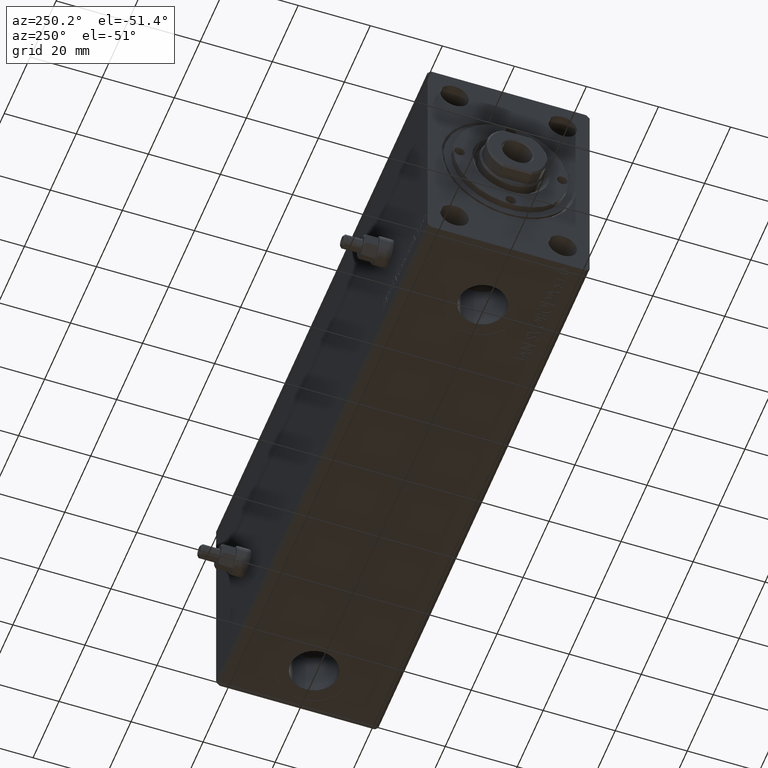
[diagram: clean part render]
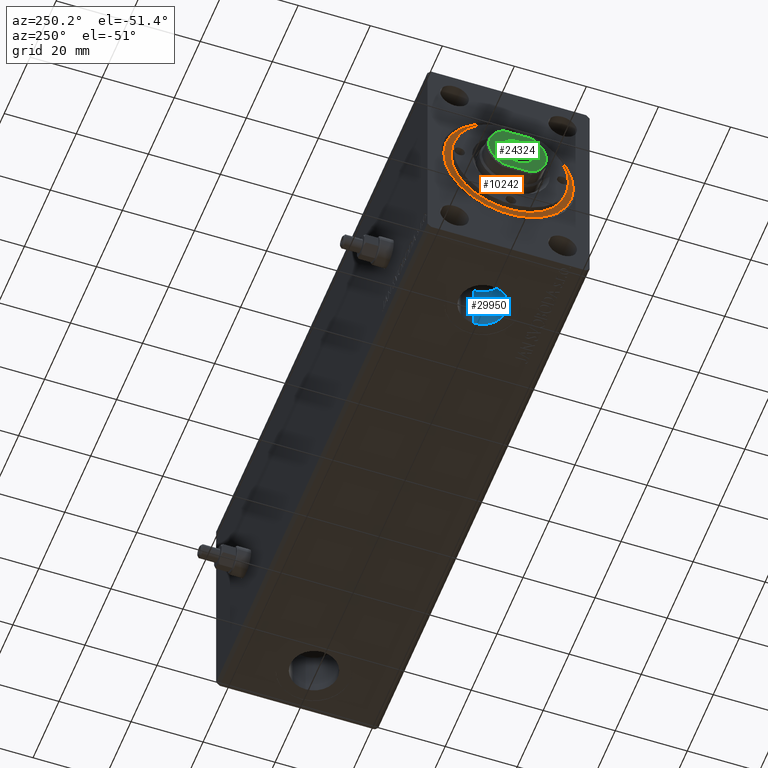
[diagram: same view with three faces highlighted in distinct colors, each labeled with its STEP entity id]
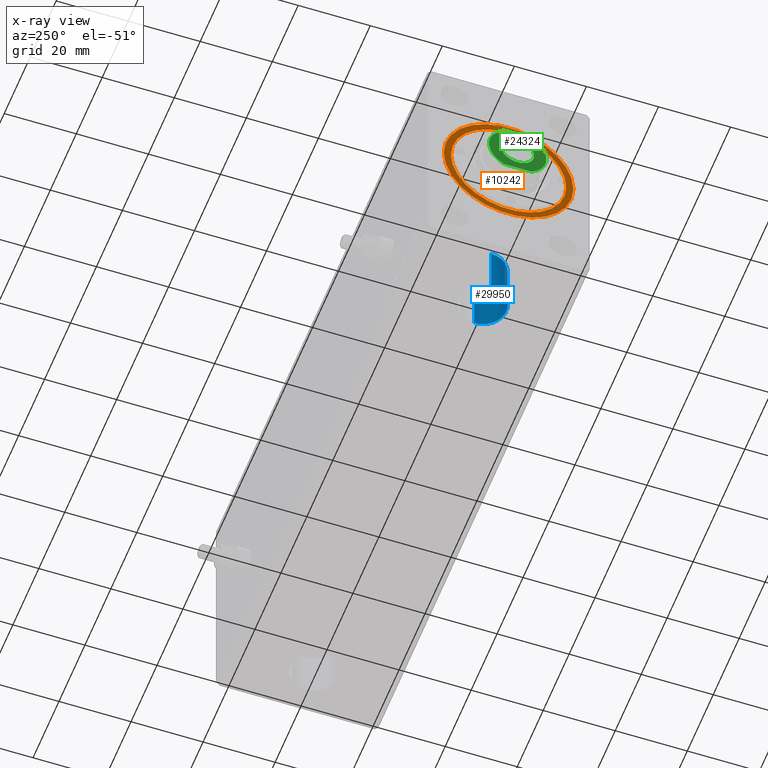
[diagram: x-ray of the same camera — body ghosted, the three highlighted faces saturated]
A machine part, auxiliary view with three faces highlighted in distinct colors.
The next image is the same camera in x-ray (body ghosted, the three faces saturated) — at least one of them is partly hidden behind the body in this view.
Their STEP definitions:

[orange] entity #10242 — the highlighted planar face has unit normal (-1, 0, 0).
#1734 = FACE_OUTER_BOUND ( 'NONE', #4239, .T. ) ;
#3431 = VERTEX_POINT ( 'NONE', #31295 ) ;
#4239 = EDGE_LOOP ( 'NONE', ( #24925, #25578 ) ) ;
#5618 = EDGE_LOOP ( 'NONE', ( #15635, #43405 ) ) ;
#5685 = DIRECTION ( 'NONE',  ( 0.000000000000000000, 0.000000000000000000, 1.000000000000000000 ) ) ;
#6613 = EDGE_CURVE ( 'NONE', #3431, #18332, #18297, .T. ) ;
#7600 = CIRCLE ( 'NONE', #33882, 18.00000000000000000 ) ;
#7765 = DIRECTION ( 'NONE',  ( 1.000000000000000000, 0.000000000000000000, 0.000000000000000000 ) ) ;
#8282 = CARTESIAN_POINT ( 'NONE',  ( 16.00000000000000000, 1.959434878635765131E-15, 5.200000000000000178 ) ) ;
#9720 = DIRECTION ( 'NONE',  ( 1.000000000000000000, 0.000000000000000000, -0.000000000000000000 ) ) ;
#9862 = CARTESIAN_POINT ( 'NONE',  ( 0.000000000000000000, 0.000000000000000000, 5.200000000000000178 ) ) ;
#10242 = ADVANCED_FACE ( 'NONE', ( #33489, #1734 ), #16113, .T. ) ;
#10292 = AXIS2_PLACEMENT_3D ( 'NONE', #27076, #26853, #9720 ) ;
#11156 = VERTEX_POINT ( 'NONE', #8282 ) ;
#12044 = CIRCLE ( 'NONE', #18586, 16.00000000000000000 ) ;
#15635 = ORIENTED_EDGE ( 'NONE', *, *, #24842, .F. ) ;
#16113 = PLANE ( 'NONE',  #10292 ) ;
#17167 = DIRECTION ( 'NONE',  ( 0.000000000000000000, 0.000000000000000000, 1.000000000000000000 ) ) ;
#18264 = VERTEX_POINT ( 'NONE', #34373 ) ;
#18297 = CIRCLE ( 'NONE', #43850, 18.00000000000000000 ) ;
#18332 = VERTEX_POINT ( 'NONE', #21999 ) ;
#18586 = AXIS2_PLACEMENT_3D ( 'NONE', #28127, #17167, #34768 ) ;
#19608 = DIRECTION ( 'NONE',  ( 1.000000000000000000, 0.000000000000000000, 0.000000000000000000 ) ) ;
#21240 = DIRECTION ( 'NONE',  ( 0.000000000000000000, 0.000000000000000000, 1.000000000000000000 ) ) ;
#21999 = CARTESIAN_POINT ( 'NONE',  ( -18.00000000000000000, 0.000000000000000000, 5.200000000000000178 ) ) ;
#22937 = CIRCLE ( 'NONE', #28766, 16.00000000000000000 ) ;
#24842 = EDGE_CURVE ( 'NONE', #18264, #11156, #12044, .T. ) ;
#24925 = ORIENTED_EDGE ( 'NONE', *, *, #43735, .T. ) ;
#25578 = ORIENTED_EDGE ( 'NONE', *, *, #6613, .T. ) ;
#26773 = DIRECTION ( 'NONE',  ( 0.000000000000000000, 0.000000000000000000, 1.000000000000000000 ) ) ;
#26853 = DIRECTION ( 'NONE',  ( 0.000000000000000000, 0.000000000000000000, 1.000000000000000000 ) ) ;
#27076 = CARTESIAN_POINT ( 'NONE',  ( 0.000000000000000000, 0.000000000000000000, 5.200000000000000178 ) ) ;
#28127 = CARTESIAN_POINT ( 'NONE',  ( 0.000000000000000000, 0.000000000000000000, 5.200000000000000178 ) ) ;
#28540 = CARTESIAN_POINT ( 'NONE',  ( 0.000000000000000000, 0.000000000000000000, 5.200000000000000178 ) ) ;
#28766 = AXIS2_PLACEMENT_3D ( 'NONE', #28540, #21240, #7765 ) ;
#31295 = CARTESIAN_POINT ( 'NONE',  ( 18.00000000000000000, 2.204364238465235428E-15, 5.200000000000000178 ) ) ;
#33489 = FACE_BOUND ( 'NONE', #5618, .T. ) ;
#33882 = AXIS2_PLACEMENT_3D ( 'NONE', #9862, #26773, #44576 ) ;
#34373 = CARTESIAN_POINT ( 'NONE',  ( -16.00000000000000000, 0.000000000000000000, 5.200000000000000178 ) ) ;
#34768 = DIRECTION ( 'NONE',  ( 1.000000000000000000, 0.000000000000000000, 0.000000000000000000 ) ) ;
#36972 = CARTESIAN_POINT ( 'NONE',  ( 0.000000000000000000, 0.000000000000000000, 5.200000000000000178 ) ) ;
#43405 = ORIENTED_EDGE ( 'NONE', *, *, #43772, .F. ) ;
#43735 = EDGE_CURVE ( 'NONE', #18332, #3431, #7600, .T. ) ;
#43772 = EDGE_CURVE ( 'NONE', #11156, #18264, #22937, .T. ) ;
#43850 = AXIS2_PLACEMENT_3D ( 'NONE', #36972, #5685, #19608 ) ;
#44576 = DIRECTION ( 'NONE',  ( 1.000000000000000000, 0.000000000000000000, 0.000000000000000000 ) ) ;

[blue] entity #29950 — the highlighted cylindrical surface (edge-blend (fillet) strip) has radius 6.58 mm, axis along (-0, -0, -1).
#206 = CARTESIAN_POINT ( 'NONE',  ( 19.99999999999999645, 2.578758962896938545E-15, -18.79999999999999716 ) ) ;
#2657 = EDGE_CURVE ( 'NONE', #19084, #8513, #41555, .T. ) ;
#7374 = VECTOR ( 'NONE', #8399, 1000.000000000000000 ) ;
#7620 = ORIENTED_EDGE ( 'NONE', *, *, #2657, .T. ) ;
#8399 = DIRECTION ( 'NONE',  ( -0.000000000000000000, -0.000000000000000000, -1.000000000000000000 ) ) ;
#8513 = VERTEX_POINT ( 'NONE', #44593 ) ;
#9378 = DIRECTION ( 'NONE',  ( 0.000000000000000000, 0.000000000000000000, -1.000000000000000000 ) ) ;
#12687 = VERTEX_POINT ( 'NONE', #39627 ) ;
#15999 = CARTESIAN_POINT ( 'NONE',  ( 19.99999999999999645, 2.578758962896938545E-15, -32.39999999999999858 ) ) ;
#17034 = ORIENTED_EDGE ( 'NONE', *, *, #26129, .F. ) ;
#17399 = ORIENTED_EDGE ( 'NONE', *, *, #28329, .T. ) ;
#18615 = CARTESIAN_POINT ( 'NONE',  ( 26.57999999999999829, 3.384576556735897587E-15, -18.79999999999999716 ) ) ;
#18784 = EDGE_LOOP ( 'NONE', ( #17034, #17399, #7620, #34931 ) ) ;
#18894 = CARTESIAN_POINT ( 'NONE',  ( 13.41999999999999460, 2.578758962896938545E-15, -18.79999999999999716 ) ) ;
#19084 = VERTEX_POINT ( 'NONE', #40623 ) ;
#22089 = LINE ( 'NONE', #18894, #7374 ) ;
#25366 = FACE_OUTER_BOUND ( 'NONE', #18784, .T. ) ;
#26057 = CARTESIAN_POINT ( 'NONE',  ( 19.99999999999999645, 2.578758962896938545E-15, -18.79999999999999716 ) ) ;
#26129 = EDGE_CURVE ( 'NONE', #12687, #39458, #38322, .T. ) ;
#28329 = EDGE_CURVE ( 'NONE', #12687, #19084, #36417, .T. ) ;
#29251 = DIRECTION ( 'NONE',  ( -1.000000000000000000, 0.000000000000000000, 0.000000000000000000 ) ) ;
#29950 = ADVANCED_FACE ( 'NONE', ( #25366 ), #36102, .F. ) ;
#32560 = DIRECTION ( 'NONE',  ( -0.000000000000000000, -0.000000000000000000, -1.000000000000000000 ) ) ;
#34040 = VECTOR ( 'NONE', #32560, 1000.000000000000000 ) ;
#34404 = EDGE_CURVE ( 'NONE', #39458, #8513, #22089, .T. ) ;
#34723 = DIRECTION ( 'NONE',  ( -1.000000000000000000, 0.000000000000000000, 0.000000000000000000 ) ) ;
#34931 = ORIENTED_EDGE ( 'NONE', *, *, #34404, .F. ) ;
#35870 = DIRECTION ( 'NONE',  ( -0.000000000000000000, -0.000000000000000000, -1.000000000000000000 ) ) ;
#36102 = CYLINDRICAL_SURFACE ( 'NONE', #43620, 6.580000000000002736 ) ;
#36417 = LINE ( 'NONE', #18615, #34040 ) ;
#38322 = CIRCLE ( 'NONE', #44885, 6.580000000000002736 ) ;
#39355 = AXIS2_PLACEMENT_3D ( 'NONE', #15999, #9378, #40889 ) ;
#39458 = VERTEX_POINT ( 'NONE', #40155 ) ;
#39627 = CARTESIAN_POINT ( 'NONE',  ( 26.57999999999999829, 3.384576556735897587E-15, -18.79999999999999716 ) ) ;
#40155 = CARTESIAN_POINT ( 'NONE',  ( 13.41999999999999460, 2.578758962896938545E-15, -18.79999999999999716 ) ) ;
#40623 = CARTESIAN_POINT ( 'NONE',  ( 26.57999999999999829, 3.384576556735897587E-15, -32.39999999999999858 ) ) ;
#40889 = DIRECTION ( 'NONE',  ( -1.000000000000000000, 0.000000000000000000, 0.000000000000000000 ) ) ;
#41552 = DIRECTION ( 'NONE',  ( 0.000000000000000000, 0.000000000000000000, -1.000000000000000000 ) ) ;
#41555 = CIRCLE ( 'NONE', #39355, 6.580000000000002736 ) ;
#43620 = AXIS2_PLACEMENT_3D ( 'NONE', #26057, #35870, #29251 ) ;
#44593 = CARTESIAN_POINT ( 'NONE',  ( 13.41999999999999460, 2.578758962896938545E-15, -32.39999999999999858 ) ) ;
#44885 = AXIS2_PLACEMENT_3D ( 'NONE', #206, #41552, #34723 ) ;

[green] entity #24324 — the highlighted planar face has unit normal (-1, 0, 0).
#1198 = CARTESIAN_POINT ( 'NONE',  ( -7.000000000000013323, -3.872983346207435673, 157.2000000000000171 ) ) ;
#1626 = EDGE_CURVE ( 'NONE', #17721, #11323, #43714, .T. ) ;
#3234 = EDGE_CURVE ( 'NONE', #14898, #17721, #41668, .T. ) ;
#3307 = ORIENTED_EDGE ( 'NONE', *, *, #31389, .T. ) ;
#3969 = ORIENTED_EDGE ( 'NONE', *, *, #14771, .T. ) ;
#4742 = VECTOR ( 'NONE', #14656, 1000.000000000000000 ) ;
#5607 = CARTESIAN_POINT ( 'NONE',  ( -4.550000000000054001, 5.572142936120522408E-16, 157.2000000000000171 ) ) ;
#5738 = CIRCLE ( 'NONE', #36341, 8.000000000000014211 ) ;
#6396 = CARTESIAN_POINT ( 'NONE',  ( 0.000000000000000000, 0.000000000000000000, 157.2000000000000171 ) ) ;
#7646 = DIRECTION ( 'NONE',  ( 1.000000000000000000, 0.000000000000000000, 0.000000000000000000 ) ) ;
#9893 = DIRECTION ( 'NONE',  ( -0.000000000000000000, -0.000000000000000000, -1.000000000000000000 ) ) ;
#10251 = CARTESIAN_POINT ( 'NONE',  ( -7.000000000000013323, 3.872983346207435673, 157.2000000000000171 ) ) ;
#10393 = CARTESIAN_POINT ( 'NONE',  ( 7.000000000000013323, 4.000000000000001776, 157.2000000000000171 ) ) ;
#11305 = VERTEX_POINT ( 'NONE', #1198 ) ;
#11323 = VERTEX_POINT ( 'NONE', #10251 ) ;
#12972 = ORIENTED_EDGE ( 'NONE', *, *, #21368, .T. ) ;
#13513 = AXIS2_PLACEMENT_3D ( 'NONE', #41174, #9893, #23587 ) ;
#13533 = CARTESIAN_POINT ( 'NONE',  ( 7.000000000000007105, 3.872983346207435673, 157.2000000000000171 ) ) ;
#13912 = DIRECTION ( 'NONE',  ( 1.000000000000000000, 0.000000000000000000, -0.000000000000000000 ) ) ;
#14049 = CARTESIAN_POINT ( 'NONE',  ( 0.000000000000000000, 0.000000000000000000, 157.2000000000000171 ) ) ;
#14253 = CIRCLE ( 'NONE', #13513, 4.550000000000054001 ) ;
#14656 = DIRECTION ( 'NONE',  ( 0.000000000000000000, -1.000000000000000000, 0.000000000000000000 ) ) ;
#14771 = EDGE_CURVE ( 'NONE', #39674, #37559, #19182, .T. ) ;
#14898 = VERTEX_POINT ( 'NONE', #32764 ) ;
#17721 = VERTEX_POINT ( 'NONE', #13533 ) ;
#18534 = CARTESIAN_POINT ( 'NONE',  ( -7.000000000000013323, -4.000000000000001776, 157.2000000000000171 ) ) ;
#19182 = CIRCLE ( 'NONE', #21353, 4.550000000000054001 ) ;
#20013 = ORIENTED_EDGE ( 'NONE', *, *, #1626, .T. ) ;
#20276 = CARTESIAN_POINT ( 'NONE',  ( 0.000000000000000000, 0.000000000000000000, 157.2000000000000171 ) ) ;
#20983 = DIRECTION ( 'NONE',  ( 0.000000000000000000, 0.000000000000000000, 1.000000000000000000 ) ) ;
#21353 = AXIS2_PLACEMENT_3D ( 'NONE', #14049, #41911, #30971 ) ;
#21368 = EDGE_CURVE ( 'NONE', #11323, #11305, #28822, .T. ) ;
#23587 = DIRECTION ( 'NONE',  ( 1.000000000000000000, 0.000000000000000000, 0.000000000000000000 ) ) ;
#23688 = AXIS2_PLACEMENT_3D ( 'NONE', #6396, #20983, #13912 ) ;
#24324 = ADVANCED_FACE ( 'NONE', ( #38343, #34921 ), #44766, .T. ) ;
#25001 = CARTESIAN_POINT ( 'NONE',  ( 0.000000000000000000, 0.000000000000000000, 157.2000000000000171 ) ) ;
#26425 = EDGE_LOOP ( 'NONE', ( #3969, #41715 ) ) ;
#26658 = EDGE_CURVE ( 'NONE', #37559, #39674, #14253, .T. ) ;
#26963 = AXIS2_PLACEMENT_3D ( 'NONE', #25001, #38921, #7646 ) ;
#28822 = LINE ( 'NONE', #18534, #4742 ) ;
#30971 = DIRECTION ( 'NONE',  ( 1.000000000000000000, 0.000000000000000000, 0.000000000000000000 ) ) ;
#31389 = EDGE_CURVE ( 'NONE', #11305, #14898, #5738, .T. ) ;
#31398 = DIRECTION ( 'NONE',  ( 0.000000000000000000, 1.000000000000000000, 0.000000000000000000 ) ) ;
#32764 = CARTESIAN_POINT ( 'NONE',  ( 7.000000000000013323, -3.872983346207435673, 157.2000000000000171 ) ) ;
#34784 = EDGE_LOOP ( 'NONE', ( #12972, #3307, #40564, #20013 ) ) ;
#34921 = FACE_BOUND ( 'NONE', #26425, .T. ) ;
#36333 = DIRECTION ( 'NONE',  ( 1.000000000000000000, 0.000000000000000000, 0.000000000000000000 ) ) ;
#36341 = AXIS2_PLACEMENT_3D ( 'NONE', #20276, #44493, #36333 ) ;
#36429 = VECTOR ( 'NONE', #31398, 1000.000000000000000 ) ;
#37559 = VERTEX_POINT ( 'NONE', #5607 ) ;
#38081 = CARTESIAN_POINT ( 'NONE',  ( 4.550000000000054001, 0.000000000000000000, 157.2000000000000171 ) ) ;
#38343 = FACE_OUTER_BOUND ( 'NONE', #34784, .T. ) ;
#38921 = DIRECTION ( 'NONE',  ( 0.000000000000000000, 0.000000000000000000, 1.000000000000000000 ) ) ;
#39674 = VERTEX_POINT ( 'NONE', #38081 ) ;
#40564 = ORIENTED_EDGE ( 'NONE', *, *, #3234, .T. ) ;
#41174 = CARTESIAN_POINT ( 'NONE',  ( 0.000000000000000000, 0.000000000000000000, 157.2000000000000171 ) ) ;
#41668 = LINE ( 'NONE', #10393, #36429 ) ;
#41715 = ORIENTED_EDGE ( 'NONE', *, *, #26658, .T. ) ;
#41911 = DIRECTION ( 'NONE',  ( -0.000000000000000000, -0.000000000000000000, -1.000000000000000000 ) ) ;
#43714 = CIRCLE ( 'NONE', #26963, 8.000000000000014211 ) ;
#44493 = DIRECTION ( 'NONE',  ( 0.000000000000000000, 0.000000000000000000, 1.000000000000000000 ) ) ;
#44766 = PLANE ( 'NONE',  #23688 ) ;